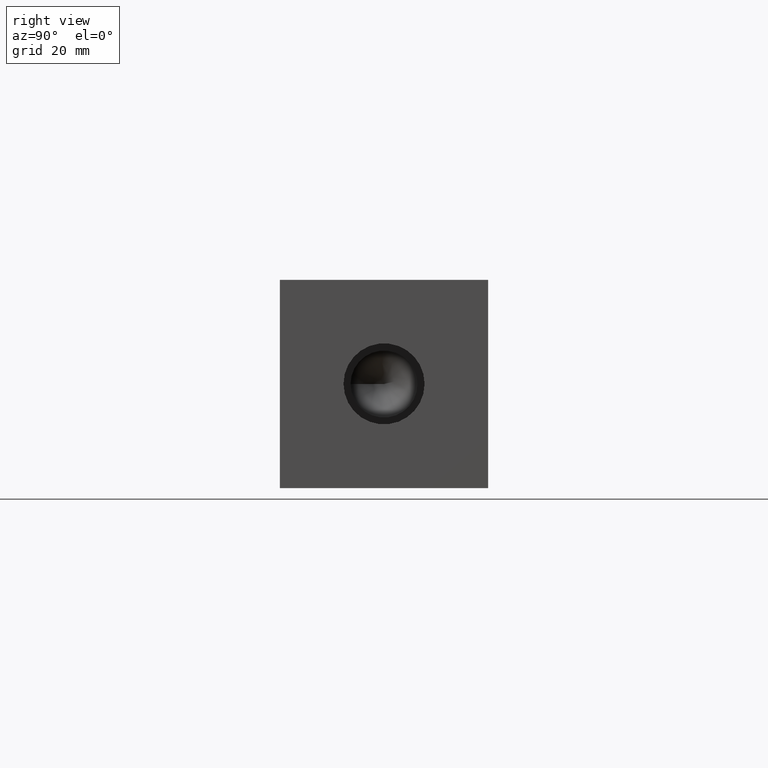
[diagram: clean part render]
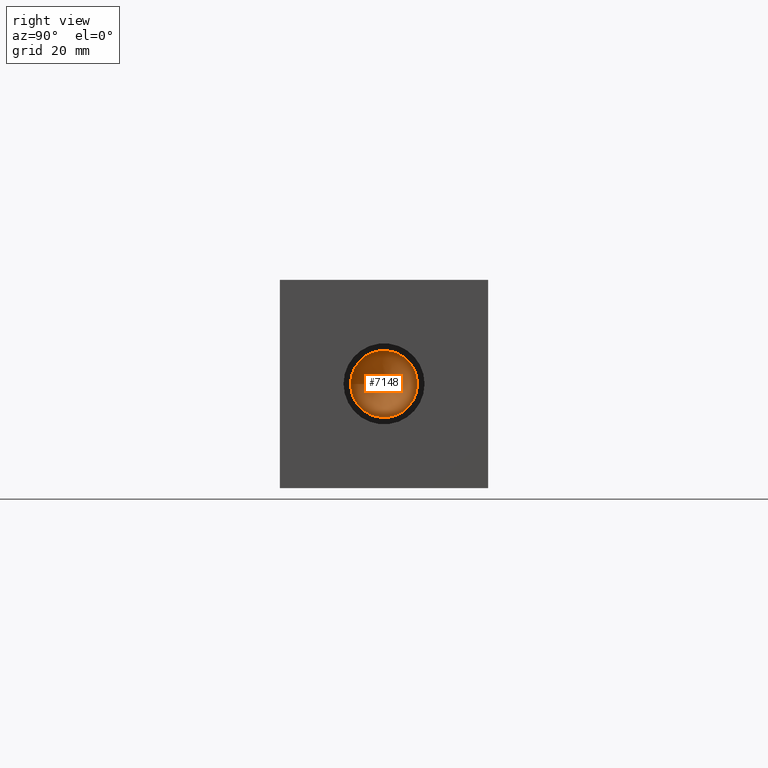
[diagram: same view with one face highlighted and labeled with its STEP entity id]
A machine part, right view. The second image highlights one B-rep face of the part: STEP entity #7148.
In plain terms, the highlighted conical surface has half-angle 60 deg.
Its self-contained STEP definition (entity closure, byte-faithful):
#52=CONICAL_SURFACE('',#7484,3.57505,1.0471975511966);
#108=CIRCLE('',#7485,7.1501);
#109=CIRCLE('',#7486,7.1501);
#751=FACE_OUTER_BOUND('',#1153,.T.);
#1153=EDGE_LOOP('',(#6314,#6315,#6316,#6317));
#1867=LINE('',#12162,#2568);
#2568=VECTOR('',#8821,3.57505);
#3428=VERTEX_POINT('',#12158);
#3429=VERTEX_POINT('',#12159);
#3430=VERTEX_POINT('',#12161);
#4401=EDGE_CURVE('',#3428,#3429,#108,.T.);
#4402=EDGE_CURVE('',#3429,#3430,#1867,.T.);
#4403=EDGE_CURVE('',#3429,#3428,#109,.T.);
#6314=ORIENTED_EDGE('',*,*,#4401,.T.);
#6315=ORIENTED_EDGE('',*,*,#4402,.T.);
#6316=ORIENTED_EDGE('',*,*,#4402,.F.);
#6317=ORIENTED_EDGE('',*,*,#4403,.T.);
#7148=ADVANCED_FACE('',(#751),#52,.F.);
#7484=AXIS2_PLACEMENT_3D('',#12157,#8817,#8818);
#7485=AXIS2_PLACEMENT_3D('',#12160,#8819,#8820);
#7486=AXIS2_PLACEMENT_3D('',#12163,#8822,#8823);
#8817=DIRECTION('center_axis',(1.,0.,0.));
#8818=DIRECTION('ref_axis',(0.,1.,0.));
#8819=DIRECTION('center_axis',(1.,0.,0.));
#8820=DIRECTION('ref_axis',(0.,1.,0.));
#8821=DIRECTION('',(-0.5,0.866025403784438,1.06057523872491E-16));
#8822=DIRECTION('center_axis',(1.,0.,0.));
#8823=DIRECTION('ref_axis',(0.,1.,0.));
#12157=CARTESIAN_POINT('Origin',(128.663333920134,22.225,22.225));
#12158=CARTESIAN_POINT('',(130.72739,29.3751,22.225));
#12159=CARTESIAN_POINT('',(130.72739,15.0749,22.225));
#12160=CARTESIAN_POINT('Origin',(130.72739,22.225,22.225));
#12161=CARTESIAN_POINT('',(126.599277840267,22.225,22.225));
#12162=CARTESIAN_POINT('',(128.663333920134,18.64995,22.225));
#12163=CARTESIAN_POINT('Origin',(130.72739,22.225,22.225));